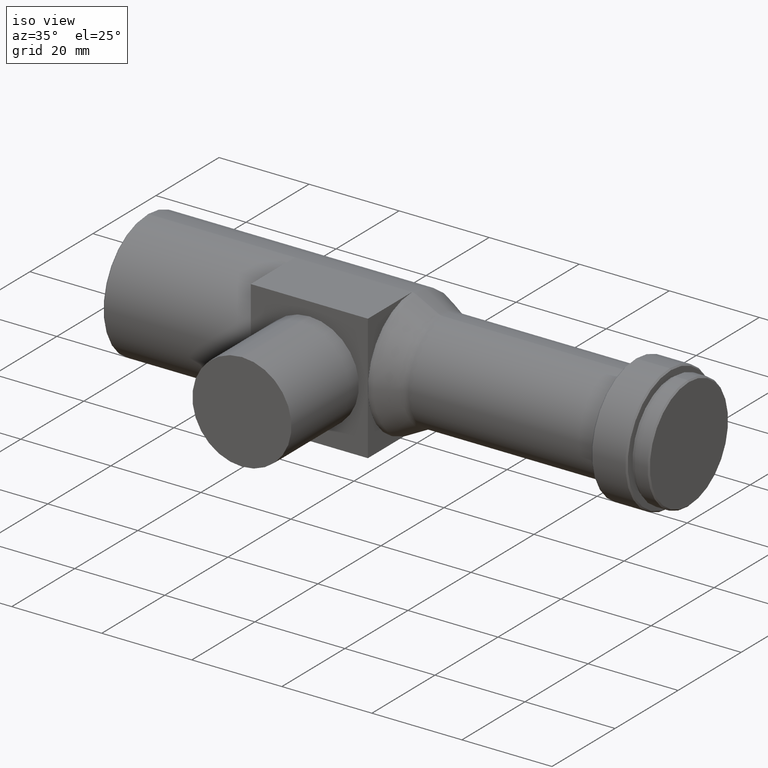
[diagram: clean part render]
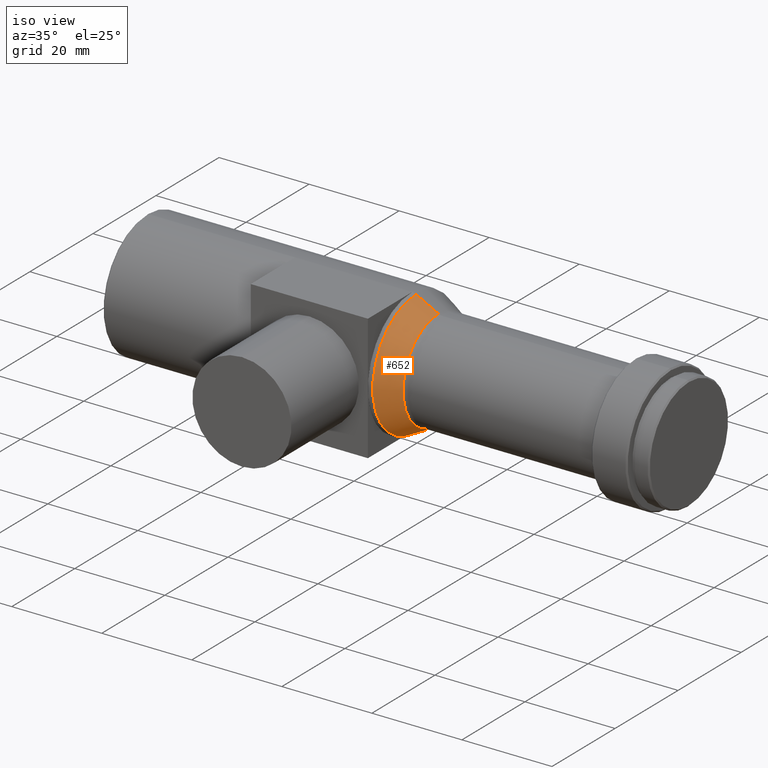
[diagram: same view with one face highlighted and labeled with its STEP entity id]
A machine part, iso view. The second image highlights one B-rep face of the part: STEP entity #652.
In plain terms, the highlighted conical surface has half-angle 27.35 deg.
Its self-contained STEP definition (entity closure, byte-faithful):
#13 = DIRECTION ( 'NONE',  ( 0.0000000000000000000, 0.0000000000000000000, 1.000000000000000000 ) ) ;
#22 = EDGE_CURVE ( 'NONE', #792, #184, #225, .T. ) ;
#30 = AXIS2_PLACEMENT_3D ( 'NONE', #84, #771, #692 ) ;
#56 = CARTESIAN_POINT ( 'NONE',  ( 64.76777488686968800, 0.0000000000000000000, 11.22356471368810000 ) ) ;
#84 = CARTESIAN_POINT ( 'NONE',  ( 64.76777488686968800, 0.0000000000000000000, 0.0000000000000000000 ) ) ;
#91 = CIRCLE ( 'NONE', #972, 13.77643528631190000 ) ;
#147 = VERTEX_POINT ( 'NONE', #445 ) ;
#178 = EDGE_CURVE ( 'NONE', #792, #520, #235, .T. ) ;
#184 = VERTEX_POINT ( 'NONE', #782 ) ;
#225 = LINE ( 'NONE', #929, #278 ) ;
#235 = CIRCLE ( 'NONE', #346, 11.22356471368810000 ) ;
#275 = DIRECTION ( 'NONE',  ( -1.000000000000000000, -0.0000000000000000000, -0.0000000000000000000 ) ) ;
#278 = VECTOR ( 'NONE', #840, 1000.000000000000000 ) ;
#304 = ORIENTED_EDGE ( 'NONE', *, *, #178, .T. ) ;
#312 = DIRECTION ( 'NONE',  ( -1.000000000000000000, -0.0000000000000000000, -0.0000000000000000000 ) ) ;
#346 = AXIS2_PLACEMENT_3D ( 'NONE', #712, #275, #13 ) ;
#400 = CARTESIAN_POINT ( 'NONE',  ( 59.83222511313034200, 0.0000000000000000000, 0.0000000000000000000 ) ) ;
#445 = CARTESIAN_POINT ( 'NONE',  ( 59.83222511313034200, 0.0000000000000000000, 13.77643528631190000 ) ) ;
#487 = VECTOR ( 'NONE', #629, 1000.000000000000000 ) ;
#520 = VERTEX_POINT ( 'NONE', #56 ) ;
#536 = EDGE_CURVE ( 'NONE', #184, #147, #91, .T. ) ;
#539 = CARTESIAN_POINT ( 'NONE',  ( 64.76777488686968800, 1.530808498934191500E-015, -11.22356471368810000 ) ) ;
#608 = CARTESIAN_POINT ( 'NONE',  ( 64.76777488686968800, 0.0000000000000000000, 11.22356471368810000 ) ) ;
#629 = DIRECTION ( 'NONE',  ( -0.8882176431559488700, 0.0000000000000000000, 0.4594229188737665200 ) ) ;
#652 = ADVANCED_FACE ( 'NONE', ( #786 ), #1064, .T. ) ;
#675 = EDGE_CURVE ( 'NONE', #520, #147, #906, .T. ) ;
#692 = DIRECTION ( 'NONE',  ( 0.0000000000000000000, 0.0000000000000000000, 1.000000000000000000 ) ) ;
#712 = CARTESIAN_POINT ( 'NONE',  ( 64.76777488686968800, 0.0000000000000000000, 0.0000000000000000000 ) ) ;
#750 = ORIENTED_EDGE ( 'NONE', *, *, #536, .F. ) ;
#771 = DIRECTION ( 'NONE',  ( -1.000000000000000000, -0.0000000000000000000, -0.0000000000000000000 ) ) ;
#782 = CARTESIAN_POINT ( 'NONE',  ( 59.83222511313034200, 1.700816128255273400E-015, -13.77643528631190000 ) ) ;
#786 = FACE_OUTER_BOUND ( 'NONE', #803, .T. ) ;
#792 = VERTEX_POINT ( 'NONE', #539 ) ;
#803 = EDGE_LOOP ( 'NONE', ( #858, #304, #816, #750 ) ) ;
#816 = ORIENTED_EDGE ( 'NONE', *, *, #675, .T. ) ;
#840 = DIRECTION ( 'NONE',  ( -0.8882176431559488700, 5.626308070536922400E-017, -0.4594229188737665200 ) ) ;
#858 = ORIENTED_EDGE ( 'NONE', *, *, #22, .F. ) ;
#906 = LINE ( 'NONE', #608, #487 ) ;
#929 = CARTESIAN_POINT ( 'NONE',  ( 64.76777488686968800, 1.374490260164131100E-015, -11.22356471368810000 ) ) ;
#972 = AXIS2_PLACEMENT_3D ( 'NONE', #400, #312, #1006 ) ;
#1006 = DIRECTION ( 'NONE',  ( 0.0000000000000000000, 0.0000000000000000000, 1.000000000000000000 ) ) ;
#1064 = CONICAL_SURFACE ( 'NONE', #30, 11.22356471368810000, 0.4773453823736718000 ) ;